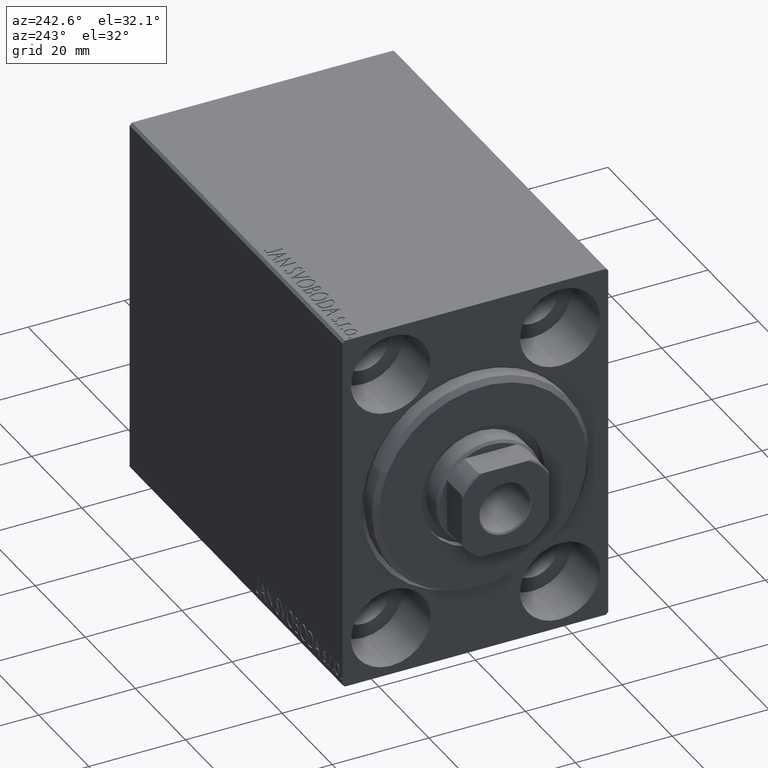
[diagram: clean part render]
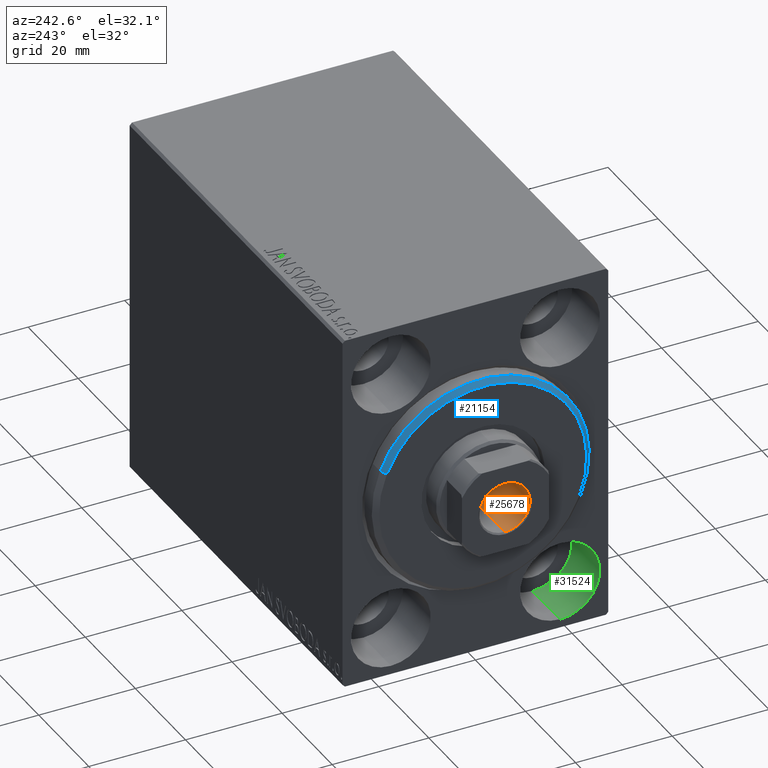
[diagram: same view with three faces highlighted in distinct colors, each labeled with its STEP entity id]
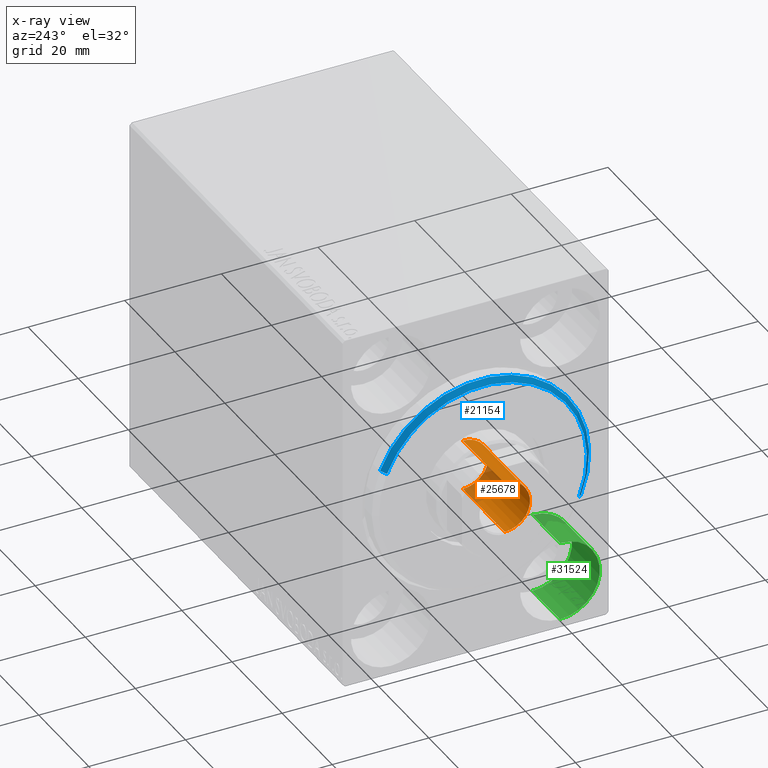
[diagram: x-ray of the same camera — body ghosted, the three highlighted faces saturated]
A machine part, auxiliary view with three faces highlighted in distinct colors.
The next image is the same camera in x-ray (body ghosted, the three faces saturated) — at least one of them is partly hidden behind the body in this view.
Their STEP definitions:

[orange] entity #25678 — the highlighted cylindrical surface (edge-blend (fillet) strip) has radius 5.25 mm, axis along (-1, 0, 0).
#4850 = DIRECTION ( 'NONE',  ( 0.000000000000000000, 0.000000000000000000, 1.000000000000000000 ) ) ;
#5704 = AXIS2_PLACEMENT_3D ( 'NONE', #32692, #8908, #29388 ) ;
#6091 = EDGE_CURVE ( 'NONE', #40790, #42673, #30276, .T. ) ;
#6158 = FACE_OUTER_BOUND ( 'NONE', #11047, .T. ) ;
#6691 = VECTOR ( 'NONE', #31665, 1000.000000000000000 ) ;
#7156 = EDGE_CURVE ( 'NONE', #18180, #42673, #34528, .T. ) ;
#8237 = CARTESIAN_POINT ( 'NONE',  ( -5.249999999999996447, 6.429395695523600208E-16, 87.00000000000001421 ) ) ;
#8449 = DIRECTION ( 'NONE',  ( -0.000000000000000000, -0.000000000000000000, 1.000000000000000000 ) ) ;
#8692 = ORIENTED_EDGE ( 'NONE', *, *, #6091, .T. ) ;
#8908 = DIRECTION ( 'NONE',  ( -0.000000000000000000, -0.000000000000000000, 1.000000000000000000 ) ) ;
#9978 = ORIENTED_EDGE ( 'NONE', *, *, #29531, .F. ) ;
#10602 = CIRCLE ( 'NONE', #5704, 5.249999999999995559 ) ;
#11047 = EDGE_LOOP ( 'NONE', ( #9978, #35853, #8692, #38407 ) ) ;
#12532 = CARTESIAN_POINT ( 'NONE',  ( 0.000000000000000000, 0.000000000000000000, 87.00000000000001421 ) ) ;
#14300 = CARTESIAN_POINT ( 'NONE',  ( 0.000000000000000000, 0.000000000000000000, 86.70000000000000284 ) ) ;
#16723 = CARTESIAN_POINT ( 'NONE',  ( 5.249999999999996447, 0.000000000000000000, 86.70000000000000284 ) ) ;
#18180 = VERTEX_POINT ( 'NONE', #23284 ) ;
#19517 = EDGE_CURVE ( 'NONE', #37266, #40790, #22078, .T. ) ;
#20579 = CARTESIAN_POINT ( 'NONE',  ( -5.249999999999995559, 6.429395695523600208E-16, 70.00000000000000000 ) ) ;
#21569 = DIRECTION ( 'NONE',  ( 1.000000000000000000, 0.000000000000000000, 0.000000000000000000 ) ) ;
#21856 = AXIS2_PLACEMENT_3D ( 'NONE', #12532, #22231, #32587 ) ;
#22078 = LINE ( 'NONE', #8237, #42126 ) ;
#22231 = DIRECTION ( 'NONE',  ( -0.000000000000000000, -0.000000000000000000, 1.000000000000000000 ) ) ;
#23284 = CARTESIAN_POINT ( 'NONE',  ( 5.249999999999995559, 0.000000000000000000, 70.00000000000000000 ) ) ;
#25678 = ADVANCED_FACE ( 'NONE', ( #6158 ), #25758, .F. ) ;
#25758 = CYLINDRICAL_SURFACE ( 'NONE', #21856, 5.249999999999996447 ) ;
#29388 = DIRECTION ( 'NONE',  ( 1.000000000000000000, 0.000000000000000000, 0.000000000000000000 ) ) ;
#29531 = EDGE_CURVE ( 'NONE', #37266, #18180, #10602, .T. ) ;
#30276 = CIRCLE ( 'NONE', #35918, 5.249999999999996447 ) ;
#30797 = CARTESIAN_POINT ( 'NONE',  ( -5.249999999999996447, 6.429395695523600208E-16, 86.70000000000000284 ) ) ;
#31665 = DIRECTION ( 'NONE',  ( -0.000000000000000000, -0.000000000000000000, 1.000000000000000000 ) ) ;
#32587 = DIRECTION ( 'NONE',  ( 1.000000000000000000, 0.000000000000000000, 0.000000000000000000 ) ) ;
#32692 = CARTESIAN_POINT ( 'NONE',  ( 0.000000000000000000, 0.000000000000000000, 70.00000000000000000 ) ) ;
#34528 = LINE ( 'NONE', #34980, #6691 ) ;
#34980 = CARTESIAN_POINT ( 'NONE',  ( 5.249999999999996447, 0.000000000000000000, 87.00000000000001421 ) ) ;
#35853 = ORIENTED_EDGE ( 'NONE', *, *, #19517, .T. ) ;
#35918 = AXIS2_PLACEMENT_3D ( 'NONE', #14300, #4850, #21569 ) ;
#37266 = VERTEX_POINT ( 'NONE', #20579 ) ;
#38407 = ORIENTED_EDGE ( 'NONE', *, *, #7156, .F. ) ;
#40790 = VERTEX_POINT ( 'NONE', #30797 ) ;
#42126 = VECTOR ( 'NONE', #8449, 1000.000000000000000 ) ;
#42673 = VERTEX_POINT ( 'NONE', #16723 ) ;

[blue] entity #21154 — the highlighted conical surface has half-angle 45 deg.
#315 = CARTESIAN_POINT ( 'NONE',  ( 1.999999999999999112, 0.000000000000000000, 0.000000000000000000 ) ) ;
#1215 = ORIENTED_EDGE ( 'NONE', *, *, #36436, .F. ) ;
#1290 = VECTOR ( 'NONE', #42390, 1000.000000000000000 ) ;
#3392 = VERTEX_POINT ( 'NONE', #39393 ) ;
#6137 = CARTESIAN_POINT ( 'NONE',  ( 3.000000000000000000, 0.000000000000000000, 21.50000000000000355 ) ) ;
#7152 = DIRECTION ( 'NONE',  ( -1.000000000000000000, 0.000000000000000000, 0.000000000000000000 ) ) ;
#10261 = VERTEX_POINT ( 'NONE', #19091 ) ;
#10279 = ORIENTED_EDGE ( 'NONE', *, *, #18817, .F. ) ;
#12545 = AXIS2_PLACEMENT_3D ( 'NONE', #20707, #40112, #30836 ) ;
#14484 = CARTESIAN_POINT ( 'NONE',  ( 3.000000000000000000, 2.632990618166810024E-15, -21.50000000000000355 ) ) ;
#16534 = VERTEX_POINT ( 'NONE', #19854 ) ;
#16689 = CARTESIAN_POINT ( 'NONE',  ( 3.000000000000000000, 0.000000000000000000, 21.50000000000000355 ) ) ;
#18199 = EDGE_CURVE ( 'NONE', #16534, #3392, #31450, .T. ) ;
#18817 = EDGE_CURVE ( 'NONE', #28224, #16534, #31564, .T. ) ;
#19091 = CARTESIAN_POINT ( 'NONE',  ( 1.999999999999999112, 0.000000000000000000, 22.50000000000000355 ) ) ;
#19854 = CARTESIAN_POINT ( 'NONE',  ( 3.000000000000000000, 2.694222958124177598E-15, -21.50000000000000355 ) ) ;
#20363 = CARTESIAN_POINT ( 'NONE',  ( 3.000000000000000000, 0.000000000000000000, 0.000000000000000000 ) ) ;
#20707 = CARTESIAN_POINT ( 'NONE',  ( 3.000000000000000000, 0.000000000000000000, 0.000000000000000000 ) ) ;
#21154 = ADVANCED_FACE ( 'NONE', ( #27855 ), #35157, .T. ) ;
#21322 = AXIS2_PLACEMENT_3D ( 'NONE', #315, #7152, #40857 ) ;
#24174 = VECTOR ( 'NONE', #30125, 1000.000000000000000 ) ;
#24851 = ORIENTED_EDGE ( 'NONE', *, *, #18199, .F. ) ;
#27855 = FACE_OUTER_BOUND ( 'NONE', #42543, .T. ) ;
#28224 = VERTEX_POINT ( 'NONE', #6137 ) ;
#29483 = LINE ( 'NONE', #16689, #24174 ) ;
#30125 = DIRECTION ( 'NONE',  ( -0.7071067811865487940, 0.000000000000000000, 0.7071067811865463515 ) ) ;
#30836 = DIRECTION ( 'NONE',  ( 0.000000000000000000, 0.000000000000000000, -1.000000000000000000 ) ) ;
#30916 = AXIS2_PLACEMENT_3D ( 'NONE', #20363, #40639, #33819 ) ;
#31450 = LINE ( 'NONE', #14484, #1290 ) ;
#31564 = CIRCLE ( 'NONE', #12545, 21.50000000000000355 ) ;
#31623 = ORIENTED_EDGE ( 'NONE', *, *, #38691, .T. ) ;
#33819 = DIRECTION ( 'NONE',  ( 0.000000000000000000, 0.000000000000000000, 1.000000000000000000 ) ) ;
#34699 = CIRCLE ( 'NONE', #21322, 22.50000000000000355 ) ;
#35157 = CONICAL_SURFACE ( 'NONE', #30916, 21.50000000000000355, 0.7853981633974466137 ) ;
#36436 = EDGE_CURVE ( 'NONE', #3392, #10261, #34699, .T. ) ;
#38691 = EDGE_CURVE ( 'NONE', #28224, #10261, #29483, .T. ) ;
#39393 = CARTESIAN_POINT ( 'NONE',  ( 1.999999999999999112, 2.755455298081545172E-15, -22.50000000000000355 ) ) ;
#40112 = DIRECTION ( 'NONE',  ( 1.000000000000000000, -0.000000000000000000, 0.000000000000000000 ) ) ;
#40639 = DIRECTION ( 'NONE',  ( -1.000000000000000000, 0.000000000000000000, 0.000000000000000000 ) ) ;
#40857 = DIRECTION ( 'NONE',  ( 0.000000000000000000, 0.000000000000000000, -1.000000000000000000 ) ) ;
#42390 = DIRECTION ( 'NONE',  ( -0.7071067811865487940, 8.659560562354919300E-17, -0.7071067811865463515 ) ) ;
#42543 = EDGE_LOOP ( 'NONE', ( #24851, #10279, #31623, #1215 ) ) ;

[green] entity #31524 — the highlighted cylindrical surface (partial cylindrical patch) has radius 8.25 mm, axis along (-1, -0, -0).
#1372 = CARTESIAN_POINT ( 'NONE',  ( 0.000000000000000000, -17.50000000000000355, -19.25000000000000355 ) ) ;
#2451 = VERTEX_POINT ( 'NONE', #38783 ) ;
#4062 = VERTEX_POINT ( 'NONE', #15919 ) ;
#4181 = CARTESIAN_POINT ( 'NONE',  ( 0.000000000000000000, -17.50000000000000355, -27.50000000000000355 ) ) ;
#5359 = DIRECTION ( 'NONE',  ( -1.000000000000000000, -0.000000000000000000, -0.000000000000000000 ) ) ;
#6397 = CIRCLE ( 'NONE', #21067, 8.250000000000000000 ) ;
#6550 = LINE ( 'NONE', #23714, #13028 ) ;
#7079 = DIRECTION ( 'NONE',  ( 0.000000000000000000, 0.000000000000000000, 1.000000000000000000 ) ) ;
#8654 = CARTESIAN_POINT ( 'NONE',  ( 11.00000000000000000, -17.50000000000000355, -19.25000000000000355 ) ) ;
#11822 = EDGE_CURVE ( 'NONE', #30077, #2451, #6550, .T. ) ;
#13028 = VECTOR ( 'NONE', #40037, 1000.000000000000000 ) ;
#15919 = CARTESIAN_POINT ( 'NONE',  ( 11.00000000000000000, -17.50000000000000355, -19.25000000000000355 ) ) ;
#17202 = DIRECTION ( 'NONE',  ( -1.000000000000000000, 0.000000000000000000, 0.000000000000000000 ) ) ;
#17830 = CARTESIAN_POINT ( 'NONE',  ( 11.00000000000000000, -17.50000000000000355, -35.75000000000000711 ) ) ;
#18312 = ORIENTED_EDGE ( 'NONE', *, *, #25987, .F. ) ;
#20591 = DIRECTION ( 'NONE',  ( 0.000000000000000000, 0.000000000000000000, 1.000000000000000000 ) ) ;
#21067 = AXIS2_PLACEMENT_3D ( 'NONE', #21160, #17202, #7079 ) ;
#21160 = CARTESIAN_POINT ( 'NONE',  ( 11.00000000000000000, -17.50000000000000355, -27.50000000000000355 ) ) ;
#23569 = EDGE_LOOP ( 'NONE', ( #40174, #27336, #40981, #18312 ) ) ;
#23714 = CARTESIAN_POINT ( 'NONE',  ( 11.00000000000000000, -17.50000000000000355, -35.75000000000000711 ) ) ;
#24761 = AXIS2_PLACEMENT_3D ( 'NONE', #4181, #27289, #34792 ) ;
#25444 = EDGE_CURVE ( 'NONE', #30077, #4062, #6397, .T. ) ;
#25987 = EDGE_CURVE ( 'NONE', #4062, #37595, #35327, .T. ) ;
#27203 = CARTESIAN_POINT ( 'NONE',  ( 11.00000000000000000, -17.50000000000000355, -27.50000000000000355 ) ) ;
#27289 = DIRECTION ( 'NONE',  ( -1.000000000000000000, 0.000000000000000000, 0.000000000000000000 ) ) ;
#27336 = ORIENTED_EDGE ( 'NONE', *, *, #11822, .T. ) ;
#28937 = AXIS2_PLACEMENT_3D ( 'NONE', #27203, #40652, #20591 ) ;
#30077 = VERTEX_POINT ( 'NONE', #17830 ) ;
#31071 = CIRCLE ( 'NONE', #24761, 8.250000000000000000 ) ;
#31524 = ADVANCED_FACE ( 'NONE', ( #34478 ), #37776, .F. ) ;
#33101 = EDGE_CURVE ( 'NONE', #2451, #37595, #31071, .T. ) ;
#34478 = FACE_OUTER_BOUND ( 'NONE', #23569, .T. ) ;
#34792 = DIRECTION ( 'NONE',  ( 0.000000000000000000, 0.000000000000000000, 1.000000000000000000 ) ) ;
#35327 = LINE ( 'NONE', #8654, #42870 ) ;
#37595 = VERTEX_POINT ( 'NONE', #1372 ) ;
#37776 = CYLINDRICAL_SURFACE ( 'NONE', #28937, 8.250000000000000000 ) ;
#38783 = CARTESIAN_POINT ( 'NONE',  ( 0.000000000000000000, -17.50000000000000355, -35.75000000000000711 ) ) ;
#40037 = DIRECTION ( 'NONE',  ( -1.000000000000000000, -0.000000000000000000, -0.000000000000000000 ) ) ;
#40174 = ORIENTED_EDGE ( 'NONE', *, *, #25444, .F. ) ;
#40652 = DIRECTION ( 'NONE',  ( -1.000000000000000000, -0.000000000000000000, -0.000000000000000000 ) ) ;
#40981 = ORIENTED_EDGE ( 'NONE', *, *, #33101, .T. ) ;
#42870 = VECTOR ( 'NONE', #5359, 1000.000000000000000 ) ;